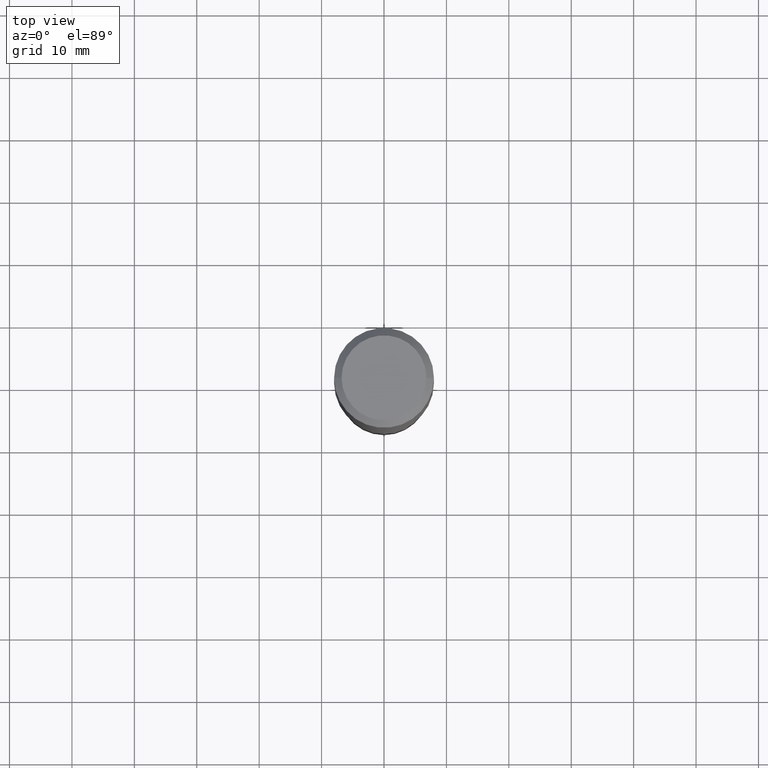
[diagram: clean part render]
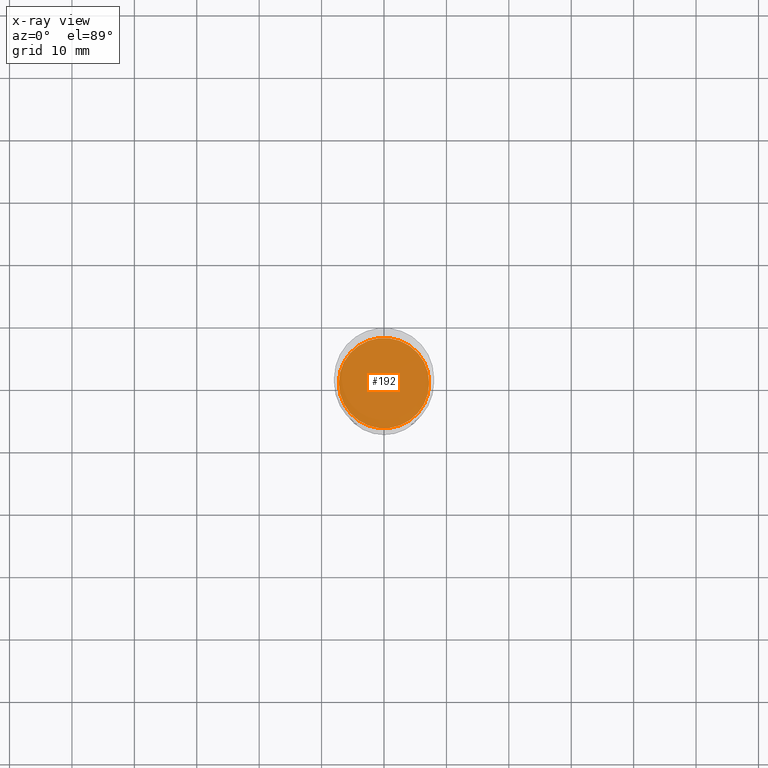
[diagram: x-ray — body ghosted, one internal face saturated and labeled with its STEP entity id]
A machine part, top view, then the same camera in x-ray: the body is ghosted and one INTERNAL B-rep face — a face not visible from any outside direction — is saturated and labeled: STEP entity #192.
In plain terms, the highlighted planar face has unit normal (-0, 0, 1).
Its self-contained STEP definition (entity closure, byte-faithful):
#12 = EDGE_CURVE ( 'NONE', #329, #239, #117, .T. ) ;
#67 = CARTESIAN_POINT ( 'NONE',  ( 0.2849499999999999811, -8.862776230519431684E-15, -1.968499999999999472 ) ) ;
#74 = FACE_OUTER_BOUND ( 'NONE', #383, .T. ) ;
#104 = CARTESIAN_POINT ( 'NONE',  ( -0.2849499999999999811, -4.845640262790213978E-15, -1.968499999999999472 ) ) ;
#117 = CIRCLE ( 'NONE', #278, 0.2849499999999999811 ) ;
#166 = DIRECTION ( 'NONE',  ( 1.000000000000000000, -6.982962677686268288E-15, 0.000000000000000000 ) ) ;
#169 = CIRCLE ( 'NONE', #248, 0.2849499999999999811 ) ;
#192 = ADVANCED_FACE ( 'NONE', ( #74 ), #417, .F. ) ;
#214 = ORIENTED_EDGE ( 'NONE', *, *, #469, .F. ) ;
#239 = VERTEX_POINT ( 'NONE', #67 ) ;
#248 = AXIS2_PLACEMENT_3D ( 'NONE', #449, #291, #294 ) ;
#278 = AXIS2_PLACEMENT_3D ( 'NONE', #301, #379, #166 ) ;
#291 = DIRECTION ( 'NONE',  ( -2.445468806185136597E-29, 3.491481338843145583E-15, 1.000000000000000000 ) ) ;
#294 = DIRECTION ( 'NONE',  ( 1.000000000000000000, -6.982962677686268288E-15, 0.000000000000000000 ) ) ;
#301 = CARTESIAN_POINT ( 'NONE',  ( 4.813905344975440153E-29, -6.872981015512730130E-15, -1.968499999999999472 ) ) ;
#329 = VERTEX_POINT ( 'NONE', #104 ) ;
#355 = CARTESIAN_POINT ( 'NONE',  ( 4.813905344975440153E-29, -6.872981015512730130E-15, -1.968499999999999472 ) ) ;
#371 = AXIS2_PLACEMENT_3D ( 'NONE', #355, #394, #390 ) ;
#379 = DIRECTION ( 'NONE',  ( -2.445468806185136597E-29, 3.491481338843145583E-15, 1.000000000000000000 ) ) ;
#383 = EDGE_LOOP ( 'NONE', ( #214, #427 ) ) ;
#390 = DIRECTION ( 'NONE',  ( 1.000000000000000000, -6.982962677686265922E-15, 4.876176775795935793E-29 ) ) ;
#394 = DIRECTION ( 'NONE',  ( -2.438088387897960049E-29, 3.491481338843145188E-15, 1.000000000000000000 ) ) ;
#417 = PLANE ( 'NONE',  #371 ) ;
#427 = ORIENTED_EDGE ( 'NONE', *, *, #12, .F. ) ;
#449 = CARTESIAN_POINT ( 'NONE',  ( 4.813905344975440153E-29, -6.872981015512730130E-15, -1.968499999999999472 ) ) ;
#469 = EDGE_CURVE ( 'NONE', #239, #329, #169, .T. ) ;